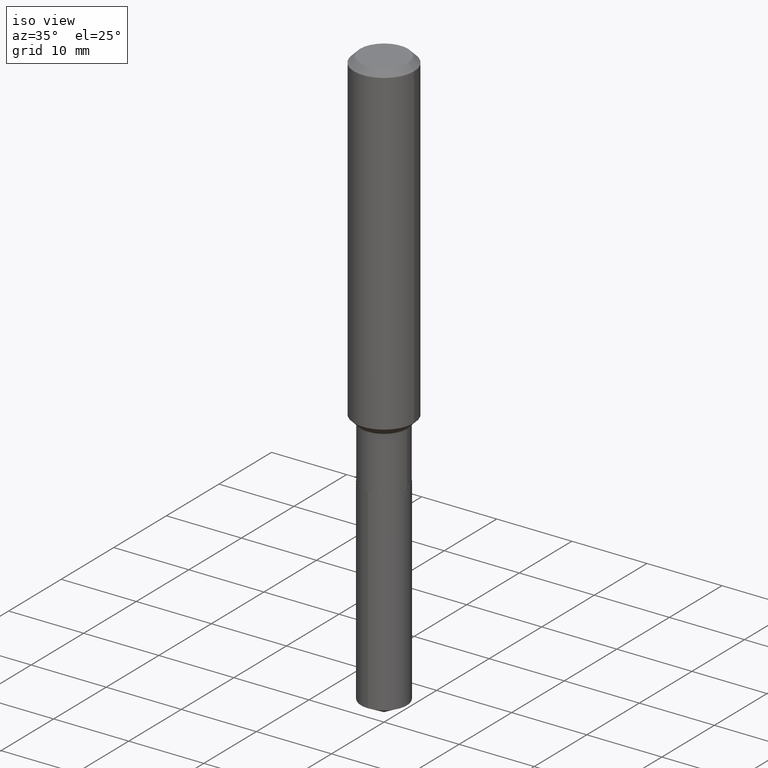
[diagram: clean part render]
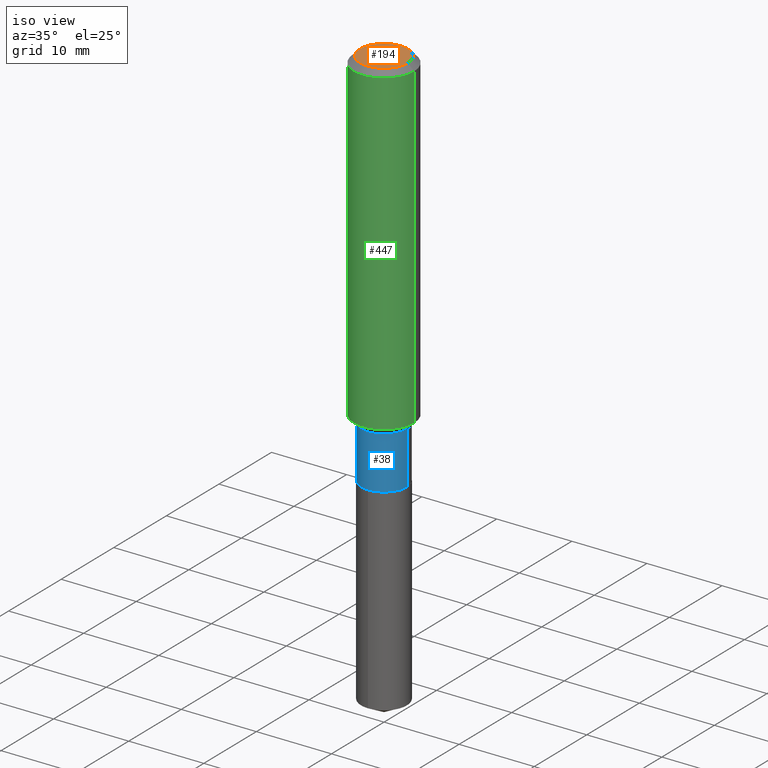
[diagram: same view with three faces highlighted in distinct colors, each labeled with its STEP entity id]
A machine part, iso view with three faces highlighted in distinct colors.
Their STEP definitions:

[orange] entity #194 — the highlighted planar face has unit normal (0, -0, -1).
#10 = CIRCLE ( 'NONE', #480, 0.1260000000000000009 ) ;
#29 = DIRECTION ( 'NONE',  ( 1.000000000000000000, -6.982962677686265922E-15, 4.876281427513067258E-29 ) ) ;
#51 = EDGE_CURVE ( 'NONE', #317, #471, #10, .T. ) ;
#52 = ORIENTED_EDGE ( 'NONE', *, *, #51, .T. ) ;
#54 = CARTESIAN_POINT ( 'NONE',  ( -9.439721640706201686E-47, 1.347742071746726764E-32, 3.860086710912459732E-18 ) ) ;
#65 = DIRECTION ( 'NONE',  ( 1.000000000000000000, -6.982962677686265922E-15, 4.876281427513067258E-29 ) ) ;
#83 = CARTESIAN_POINT ( 'NONE',  ( -9.439721640706201686E-47, 1.347742071746726764E-32, 3.860086710912459732E-18 ) ) ;
#96 = AXIS2_PLACEMENT_3D ( 'NONE', #54, #258, #65 ) ;
#109 = FACE_OUTER_BOUND ( 'NONE', #394, .T. ) ;
#130 = AXIS2_PLACEMENT_3D ( 'NONE', #287, #179, #329 ) ;
#149 = DIRECTION ( 'NONE',  ( -2.445468806185136597E-29, 3.491481338843145583E-15, 1.000000000000000000 ) ) ;
#179 = DIRECTION ( 'NONE',  ( 2.438088387897960049E-29, -3.491481338843145188E-15, -1.000000000000000000 ) ) ;
#194 = ADVANCED_FACE ( 'NONE', ( #109 ), #465, .F. ) ;
#195 = CARTESIAN_POINT ( 'NONE',  ( -0.1260000000000000009, 9.348441284752484904E-16, 3.860086710906114178E-18 ) ) ;
#232 = ORIENTED_EDGE ( 'NONE', *, *, #243, .T. ) ;
#243 = EDGE_CURVE ( 'NONE', #471, #317, #416, .T. ) ;
#258 = DIRECTION ( 'NONE',  ( -2.445468806185136597E-29, 3.491481338843145583E-15, 1.000000000000000000 ) ) ;
#287 = CARTESIAN_POINT ( 'NONE',  ( -4.719860820353100843E-47, 6.738710358733633822E-33, 1.930043355456229866E-18 ) ) ;
#317 = VERTEX_POINT ( 'NONE', #195 ) ;
#329 = DIRECTION ( 'NONE',  ( -1.000000000000000000, 6.982962677686265922E-15, -4.876176775795935793E-29 ) ) ;
#394 = EDGE_LOOP ( 'NONE', ( #52, #232 ) ) ;
#416 = CIRCLE ( 'NONE', #96, 0.1260000000000000009 ) ;
#435 = CARTESIAN_POINT ( 'NONE',  ( 0.1260000000000000009, -1.027466422270894443E-15, 3.860086710919128072E-18 ) ) ;
#465 = PLANE ( 'NONE',  #130 ) ;
#471 = VERTEX_POINT ( 'NONE', #435 ) ;
#480 = AXIS2_PLACEMENT_3D ( 'NONE', #83, #149, #29 ) ;

[blue] entity #38 — the highlighted cylindrical surface (edge-blend (fillet) strip) has radius 3.0505 mm, axis along (-0, 0, 1).
#4 = CIRCLE ( 'NONE', #431, 0.1201000000000000401 ) ;
#7 = ORIENTED_EDGE ( 'NONE', *, *, #128, .T. ) ;
#20 = CIRCLE ( 'NONE', #421, 0.1200999999999999984 ) ;
#38 = ADVANCED_FACE ( 'NONE', ( #79 ), #330, .T. ) ;
#44 = VECTOR ( 'NONE', #164, 39.37007874015748143 ) ;
#59 = CARTESIAN_POINT ( 'NONE',  ( 0.1201000000000000401, -7.861070234405340592E-15, -2.011300000000000310 ) ) ;
#62 = ORIENTED_EDGE ( 'NONE', *, *, #186, .F. ) ;
#73 = CARTESIAN_POINT ( 'NONE',  ( 0.000000000000000000, 0.000000000000000000, 0.000000000000000000 ) ) ;
#76 = CARTESIAN_POINT ( 'NONE',  ( -0.1201000000000000539, -5.687753888607810649E-15, -2.011300000000000310 ) ) ;
#79 = FACE_OUTER_BOUND ( 'NONE', #276, .T. ) ;
#128 = EDGE_CURVE ( 'NONE', #214, #425, #200, .T. ) ;
#133 = VERTEX_POINT ( 'NONE', #204 ) ;
#138 = DIRECTION ( 'NONE',  ( 1.000000000000000000, -6.982962677686265922E-15, 0.000000000000000000 ) ) ;
#154 = EDGE_CURVE ( 'NONE', #133, #425, #20, .T. ) ;
#164 = DIRECTION ( 'NONE',  ( -2.445468806185136877E-29, 3.491481338843145188E-15, 1.000000000000000000 ) ) ;
#173 = CARTESIAN_POINT ( 'NONE',  ( 4.918571409880165574E-29, -7.022416416815219512E-15, -2.011300000000000310 ) ) ;
#186 = EDGE_CURVE ( 'NONE', #292, #133, #475, .T. ) ;
#193 = ORIENTED_EDGE ( 'NONE', *, *, #154, .F. ) ;
#199 = CARTESIAN_POINT ( 'NONE',  ( 0.1200999999999999984, -6.898468829286284082E-15, -1.735600000000000032 ) ) ;
#200 = LINE ( 'NONE', #344, #44 ) ;
#204 = CARTESIAN_POINT ( 'NONE',  ( -0.1200999999999999984, -5.687753888607810649E-15, -1.735600000000000032 ) ) ;
#214 = VERTEX_POINT ( 'NONE', #59 ) ;
#221 = DIRECTION ( 'NONE',  ( -2.445468806185136877E-29, 3.491481338843145188E-15, 1.000000000000000000 ) ) ;
#231 = DIRECTION ( 'NONE',  ( 1.000000000000000000, -6.982962677686266711E-15, 4.876176775795935232E-29 ) ) ;
#265 = DIRECTION ( 'NONE',  ( -2.445468806185136597E-29, 3.491481338843145583E-15, 1.000000000000000000 ) ) ;
#276 = EDGE_LOOP ( 'NONE', ( #62, #345, #7, #193 ) ) ;
#292 = VERTEX_POINT ( 'NONE', #76 ) ;
#297 = DIRECTION ( 'NONE',  ( -2.445468806185136597E-29, 3.491481338843145583E-15, 1.000000000000000000 ) ) ;
#330 = CYLINDRICAL_SURFACE ( 'NONE', #410, 0.1201000000000000262 ) ;
#344 = CARTESIAN_POINT ( 'NONE',  ( 0.1201000000000000262, -8.386538175901207842E-16, 5.856288307730919352E-30 ) ) ;
#345 = ORIENTED_EDGE ( 'NONE', *, *, #488, .T. ) ;
#356 = CARTESIAN_POINT ( 'NONE',  ( 4.244355660014922752E-29, -6.059815011696163002E-15, -1.735600000000000032 ) ) ;
#366 = DIRECTION ( 'NONE',  ( -2.445468806185136597E-29, 3.491481338843145583E-15, 1.000000000000000000 ) ) ;
#396 = CARTESIAN_POINT ( 'NONE',  ( -0.1201000000000000262, 8.533618256478805092E-16, -5.907641043396142645E-30 ) ) ;
#410 = AXIS2_PLACEMENT_3D ( 'NONE', #73, #366, #231 ) ;
#421 = AXIS2_PLACEMENT_3D ( 'NONE', #356, #297, #138 ) ;
#425 = VERTEX_POINT ( 'NONE', #199 ) ;
#431 = AXIS2_PLACEMENT_3D ( 'NONE', #173, #265, #474 ) ;
#474 = DIRECTION ( 'NONE',  ( 1.000000000000000000, -6.982962677686263555E-15, 0.000000000000000000 ) ) ;
#475 = LINE ( 'NONE', #396, #484 ) ;
#484 = VECTOR ( 'NONE', #221, 39.37007874015748143 ) ;
#488 = EDGE_CURVE ( 'NONE', #292, #214, #4, .T. ) ;

[green] entity #447 — the highlighted cylindrical surface (partial cylindrical patch) has radius 4.0005 mm, axis along (-0, 0, 1).
#34 = EDGE_CURVE ( 'NONE', #42, #181, #263, .T. ) ;
#35 = VERTEX_POINT ( 'NONE', #380 ) ;
#42 = VERTEX_POINT ( 'NONE', #259 ) ;
#63 = DIRECTION ( 'NONE',  ( 1.000000000000000000, -6.982962677686267499E-15, 4.876176775795936353E-29 ) ) ;
#151 = AXIS2_PLACEMENT_3D ( 'NONE', #250, #185, #245 ) ;
#171 = CARTESIAN_POINT ( 'NONE',  ( 0.1575000000000000011, -1.209798283909146741E-15, -0.03150000000000018757 ) ) ;
#176 = DIRECTION ( 'NONE',  ( -2.445468806185136597E-29, 3.491481338843145583E-15, 1.000000000000000000 ) ) ;
#178 = EDGE_CURVE ( 'NONE', #35, #42, #248, .T. ) ;
#181 = VERTEX_POINT ( 'NONE', #171 ) ;
#185 = DIRECTION ( 'NONE',  ( -2.445468806185136597E-29, 3.491481338843145583E-15, 1.000000000000000000 ) ) ;
#187 = CARTESIAN_POINT ( 'NONE',  ( 0.1575000000000000844, -1.099816621735587677E-15, 7.679978421878603638E-30 ) ) ;
#207 = CIRCLE ( 'NONE', #405, 0.1575000000000000011 ) ;
#208 = CARTESIAN_POINT ( 'NONE',  ( -0.1575000000000000844, 1.119104808822158392E-15, -7.747322767151481189E-30 ) ) ;
#211 = CARTESIAN_POINT ( 'NONE',  ( 0.000000000000000000, 0.000000000000000000, 0.000000000000000000 ) ) ;
#215 = EDGE_CURVE ( 'NONE', #35, #388, #217, .T. ) ;
#217 = LINE ( 'NONE', #208, #323 ) ;
#233 = EDGE_CURVE ( 'NONE', #388, #181, #207, .T. ) ;
#235 = CYLINDRICAL_SURFACE ( 'NONE', #310, 0.1575000000000000844 ) ;
#242 = ORIENTED_EDGE ( 'NONE', *, *, #233, .F. ) ;
#245 = DIRECTION ( 'NONE',  ( 1.000000000000000000, -6.982962677686265922E-15, 0.000000000000000000 ) ) ;
#248 = CIRCLE ( 'NONE', #151, 0.1575000000000001954 ) ;
#250 = CARTESIAN_POINT ( 'NONE',  ( 4.152895126663598802E-29, -5.929233609623429802E-15, -1.698199999999999932 ) ) ;
#256 = EDGE_LOOP ( 'NONE', ( #322, #423, #342, #242 ) ) ;
#259 = CARTESIAN_POINT ( 'NONE',  ( 0.1575000000000001954, -7.029050231359018071E-15, -1.698199999999999932 ) ) ;
#263 = LINE ( 'NONE', #187, #429 ) ;
#284 = DIRECTION ( 'NONE',  ( -2.445468806185136597E-29, 3.491481338843145583E-15, 1.000000000000000000 ) ) ;
#296 = DIRECTION ( 'NONE',  ( -2.445468806185136877E-29, 3.491481338843145188E-15, 1.000000000000000000 ) ) ;
#310 = AXIS2_PLACEMENT_3D ( 'NONE', #211, #176, #63 ) ;
#322 = ORIENTED_EDGE ( 'NONE', *, *, #215, .F. ) ;
#323 = VECTOR ( 'NONE', #391, 39.37007874015748143 ) ;
#342 = ORIENTED_EDGE ( 'NONE', *, *, #34, .T. ) ;
#352 = DIRECTION ( 'NONE',  ( 1.000000000000000000, -6.982962677686265922E-15, 0.000000000000000000 ) ) ;
#380 = CARTESIAN_POINT ( 'NONE',  ( -0.1575000000000001954, -4.810128800801269832E-15, -1.698199999999999932 ) ) ;
#383 = CARTESIAN_POINT ( 'NONE',  ( -0.1575000000000000011, -1.900502827076335449E-15, -0.03150000000000018757 ) ) ;
#388 = VERTEX_POINT ( 'NONE', #383 ) ;
#391 = DIRECTION ( 'NONE',  ( -2.445468806185136877E-29, 3.491481338843145188E-15, 1.000000000000000000 ) ) ;
#405 = AXIS2_PLACEMENT_3D ( 'NONE', #479, #284, #352 ) ;
#423 = ORIENTED_EDGE ( 'NONE', *, *, #178, .T. ) ;
#429 = VECTOR ( 'NONE', #296, 39.37007874015748143 ) ;
#447 = ADVANCED_FACE ( 'NONE', ( #463 ), #235, .T. ) ;
#463 = FACE_OUTER_BOUND ( 'NONE', #256, .T. ) ;
#479 = CARTESIAN_POINT ( 'NONE',  ( 7.703226739483226095E-31, -1.099816621735597415E-16, -0.03150000000000018757 ) ) ;